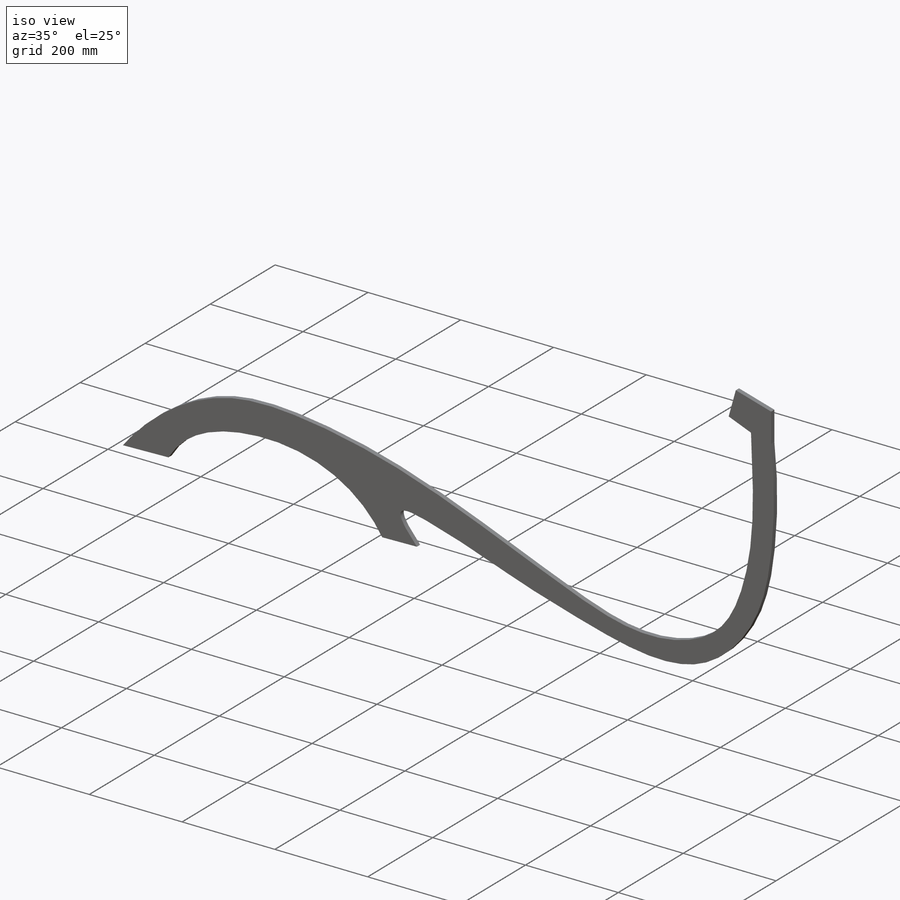
[diagram: iso view]
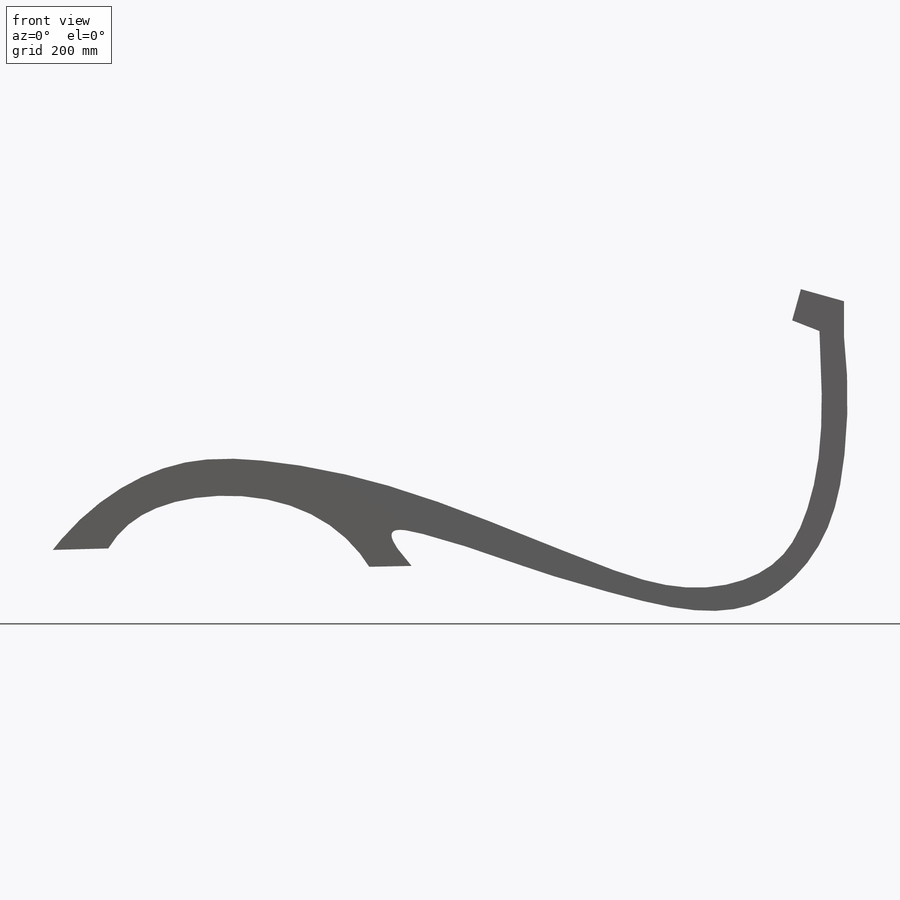
[diagram: front view]
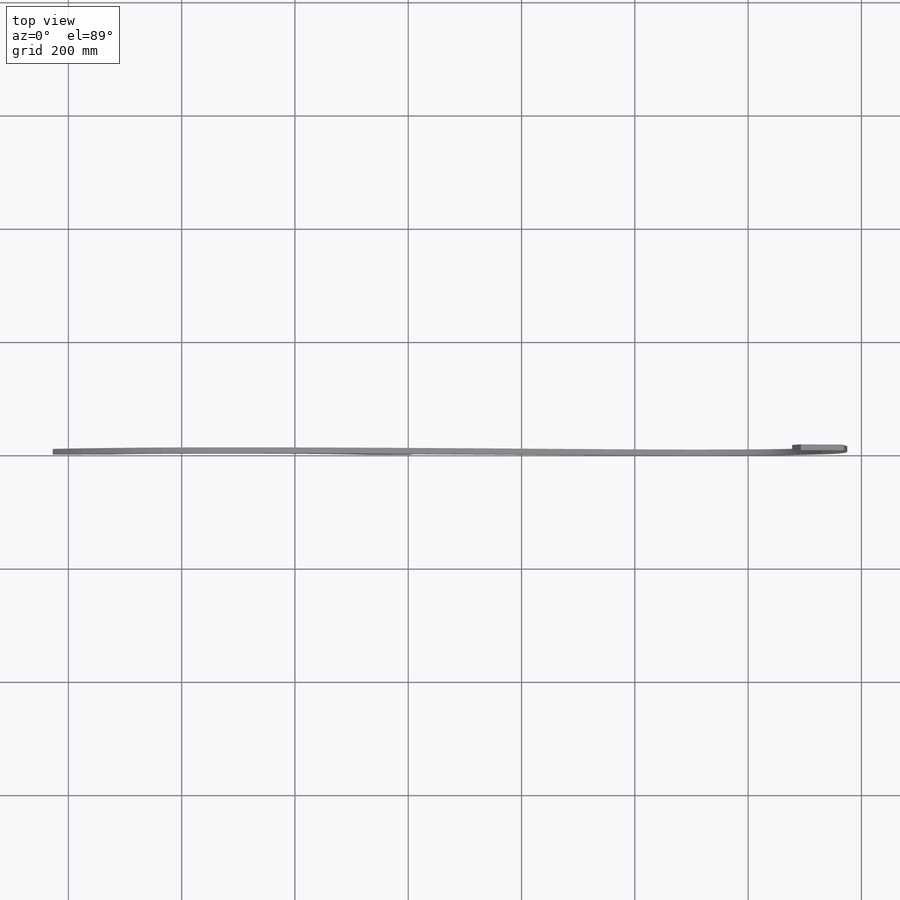
[diagram: top view]
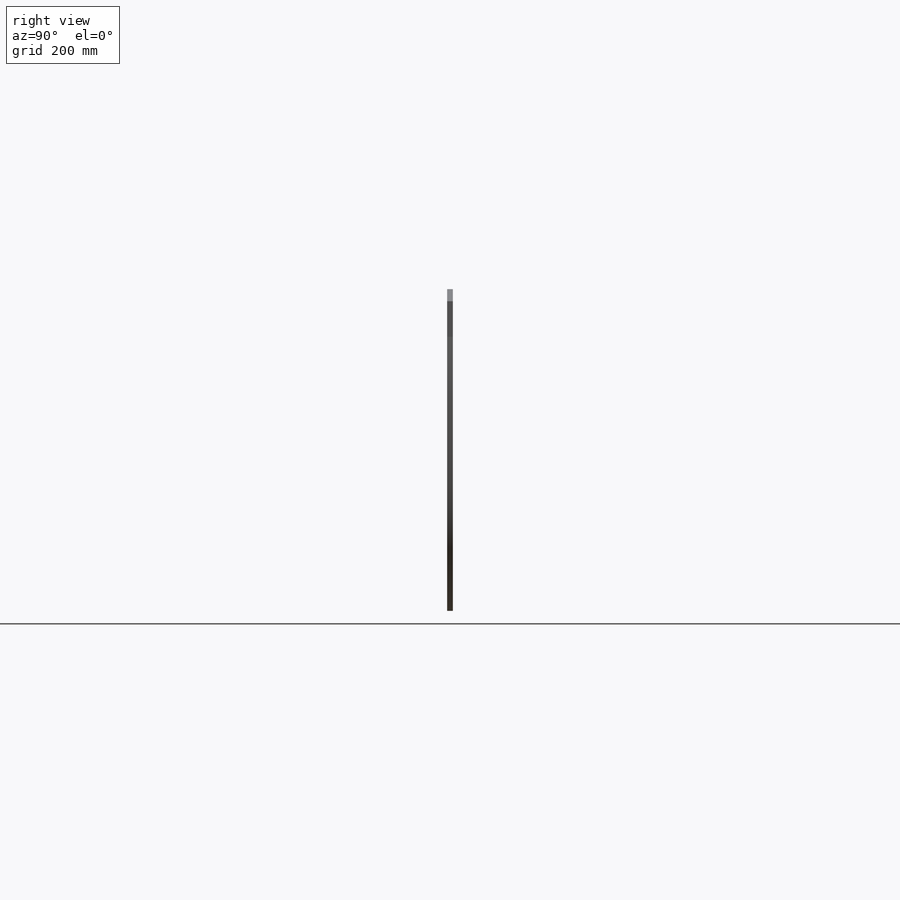
[diagram: right view]
SOLIDWORKS PART (.sldprt)
format: sldprt  version: not decoded by parser v0  size: 435,200 bytes
history: native  units: mm
features: sketch x10, cut_extrude x9, material x1, extrude x1, fillet x1 (+11 scaffold rows collapsed)
feature tree (33):
  scaffold x11  (default folders/planes/origin — collapsed)
  material  "Material <not specified>"
  sketch  "Sketch1"  dims[c1.D1=11.0776mm c2.D1=~15.629145deg c3.D1=30.0mm]
  extrude  "Boss-Extrude1"  Depth=10mm
  sketch  "Sketch2"
  sketch  "Sketch5"
  cut_extrude  "Cut-Extrude4"  Depth=10mm
  fillet  "Fillet1"  Radius=20mm
  sketch  "Sketch6"  dims[D1=0.0mm]
  cut_extrude  "Cut-Extrude5"  Depth=40mm
  cut_extrude  "Cut-Extrude1"  Depth=20mm
  sketch  "Sketch3"  dims[c1.D1=~10.450365mm c2.D1=~0.204667deg c3.D1=20.0mm]
  cut_extrude  "Cut-Extrude2"  Depth=10mm
  sketch  "Sketch7"
  cut_extrude  "Cut-Extrude7"  Depth=10mm
  sketch  "Sketch8"
  cut_extrude  "Cut-Extrude8"  Depth=10mm
  sketch  "Sketch10"
  cut_extrude  "Cut-Extrude9"  Depth=10mm
  sketch  "Sketch11"
  cut_extrude  "Cut-Extrude10"  Depth=20mm
  sketch  "Sketch12"
  cut_extrude  "Cut-Extrude11"  Depth=10mm
decode coverage: 14 of 21 modeling features carry decoded parameters
note: ~ marks probable driven/reference dimensions
note: suppression state not decoded; provenance and decode notes live in map.json
